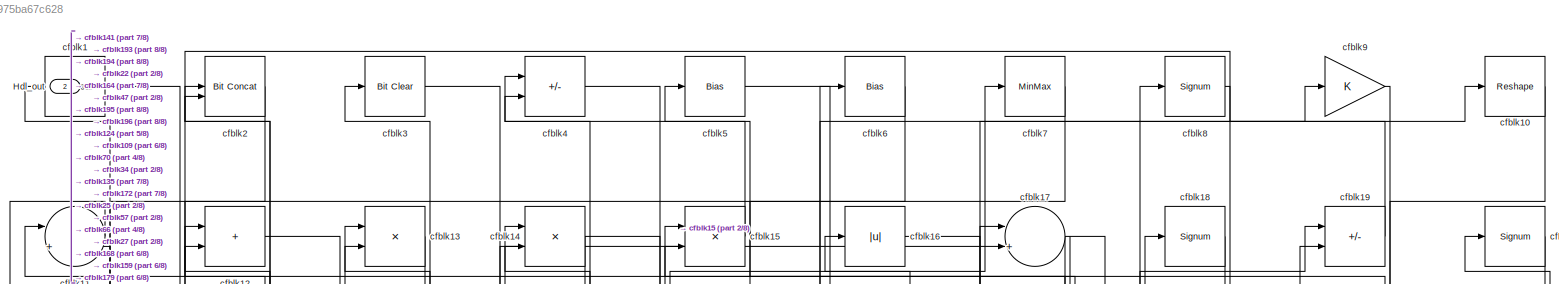
[diagram: root canvas - part 1/8, full width, top band]
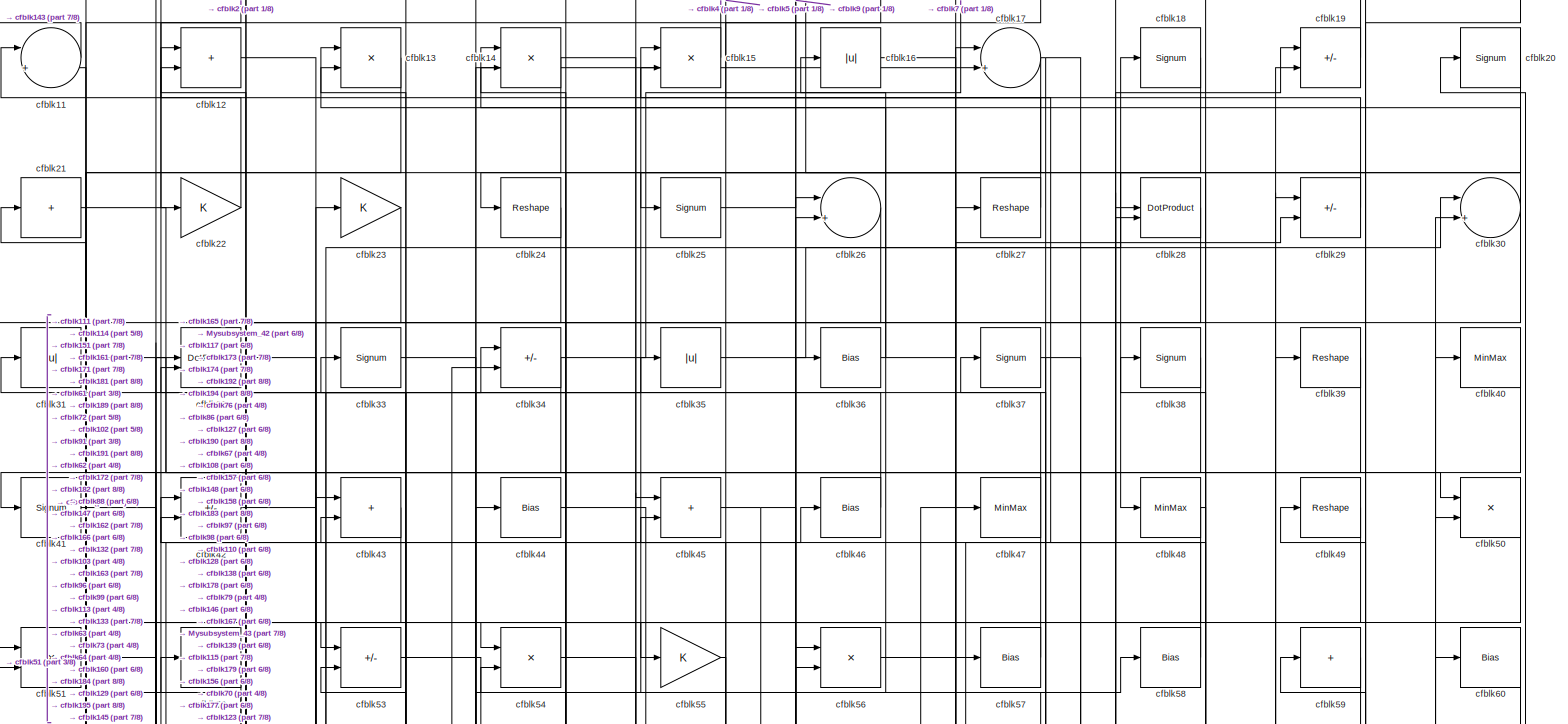
[diagram: root canvas - part 2/8, full width, top band]
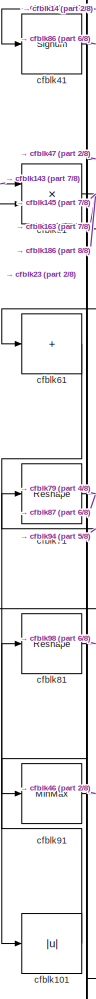
[diagram: root canvas - part 3/8, middle left region]
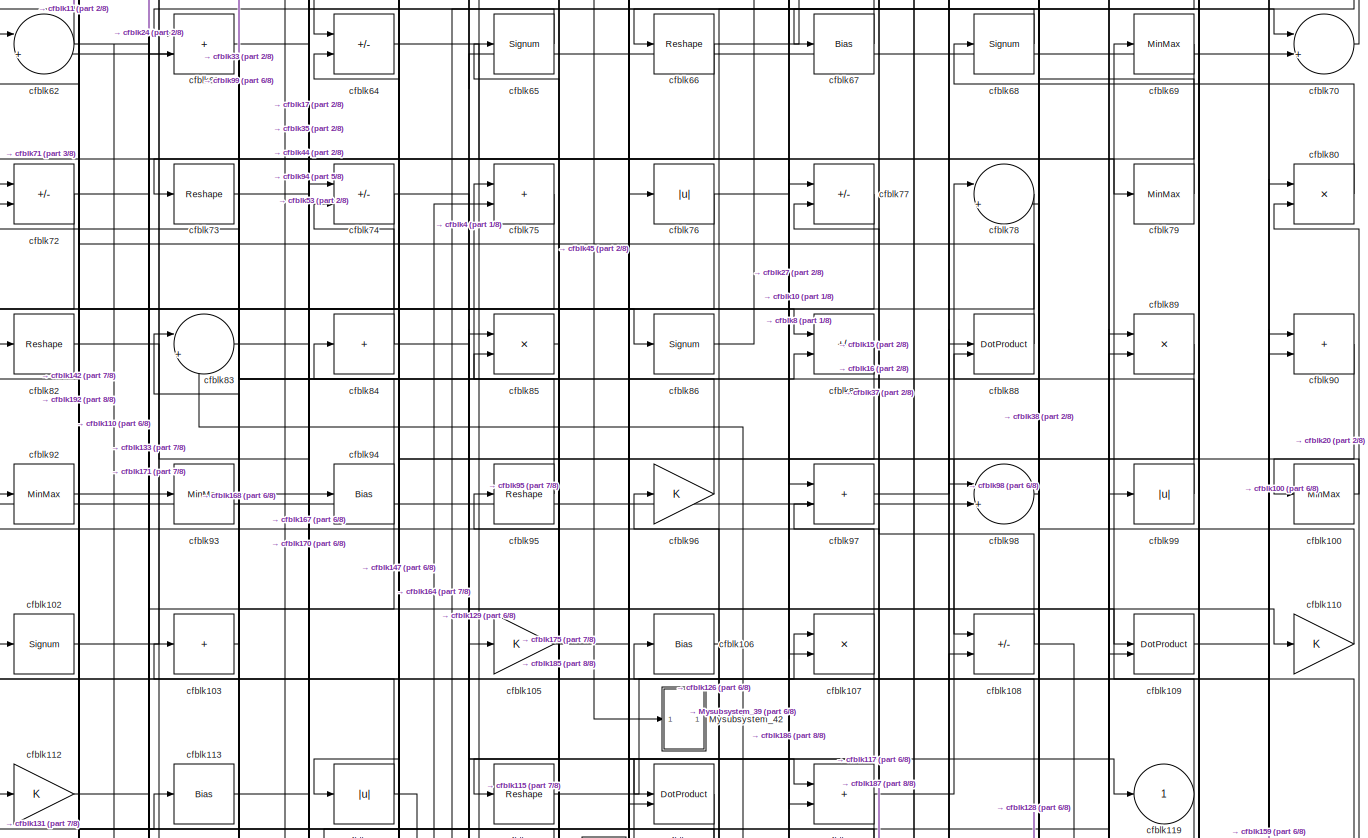
[diagram: root canvas - part 4/8, full width, middle band]
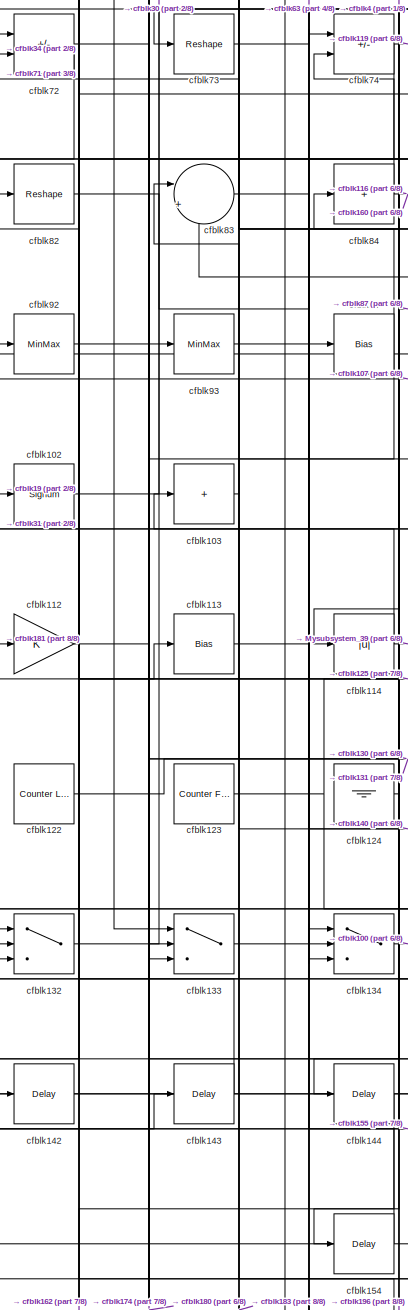
[diagram: root canvas - part 5/8, middle left region]
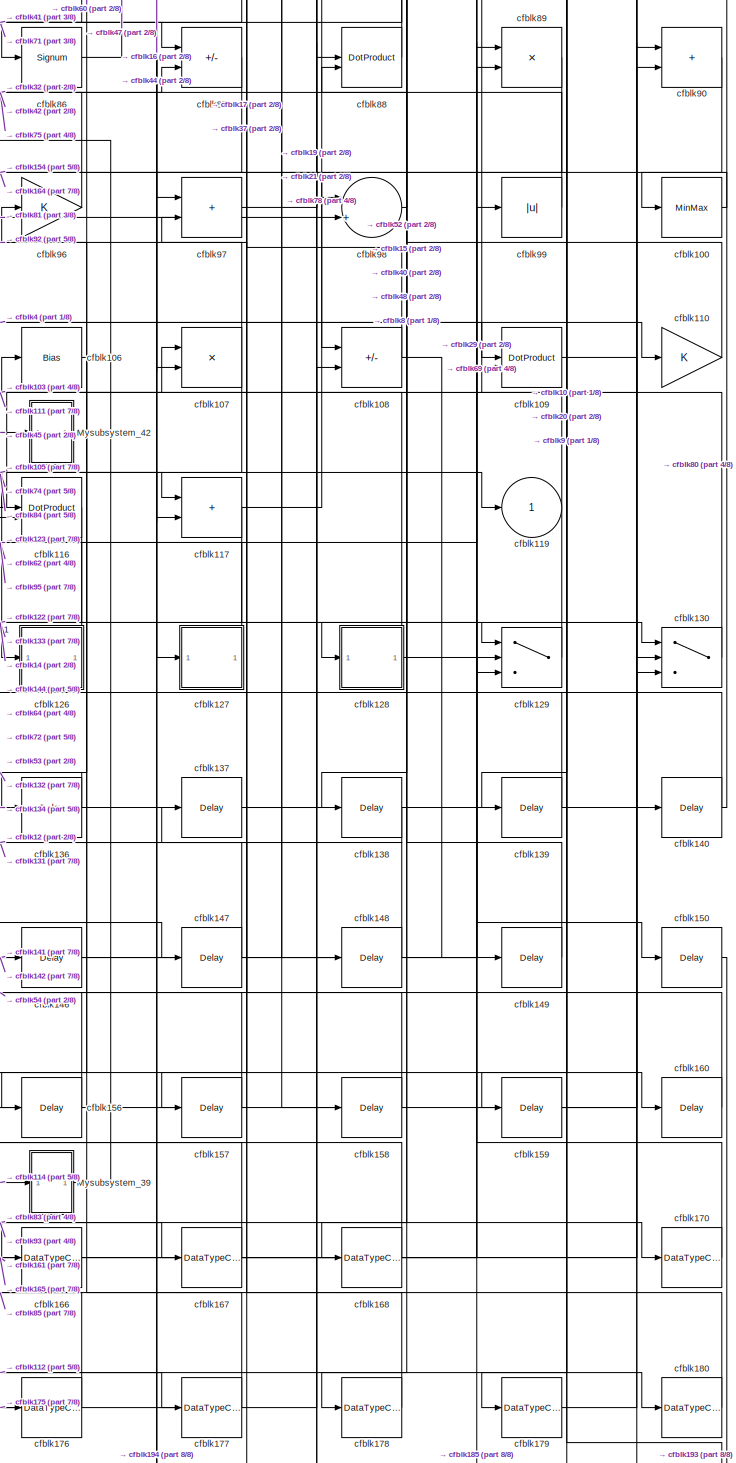
[diagram: root canvas - part 6/8, middle right region]
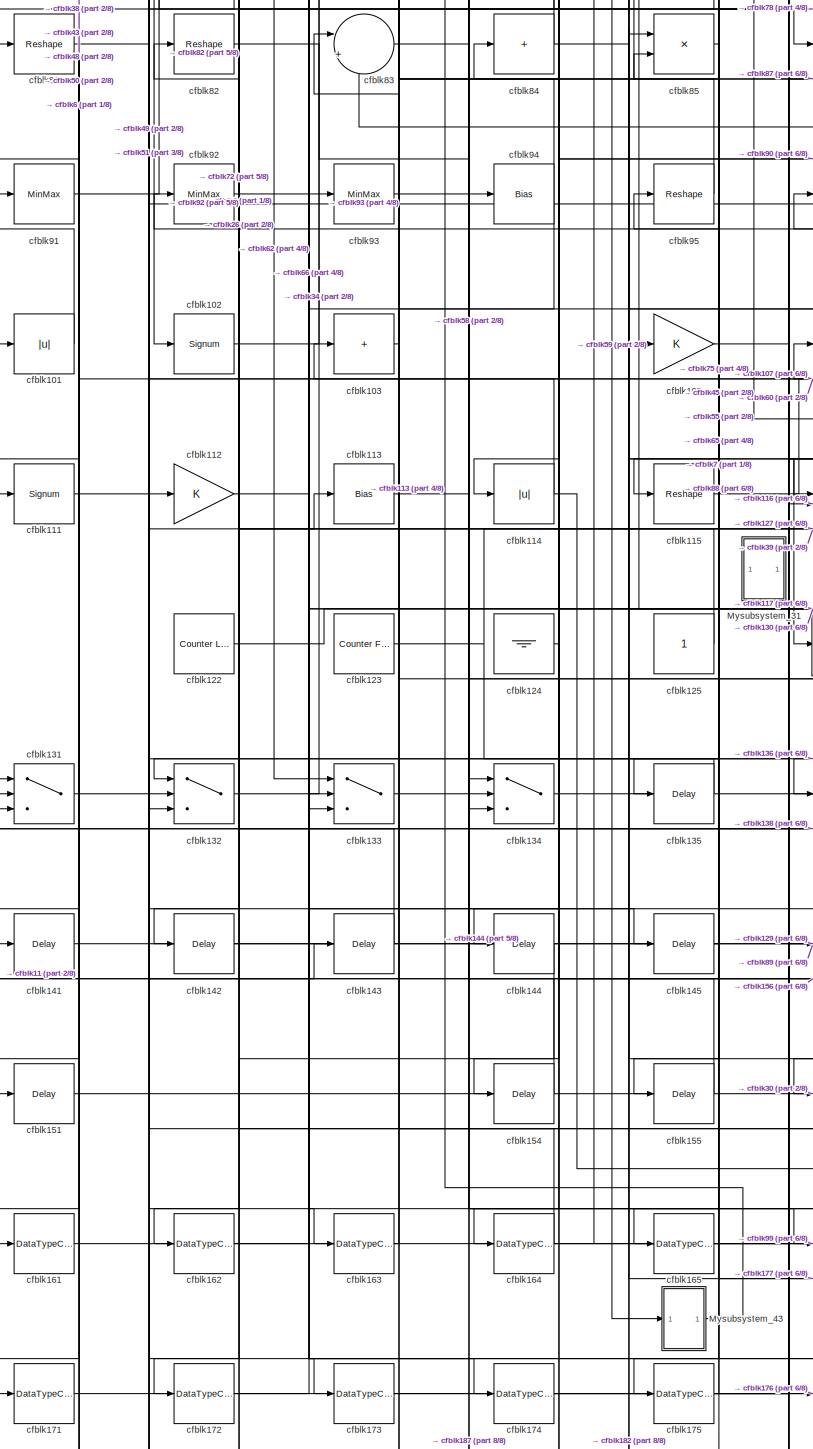
[diagram: root canvas - part 7/8, middle left region]
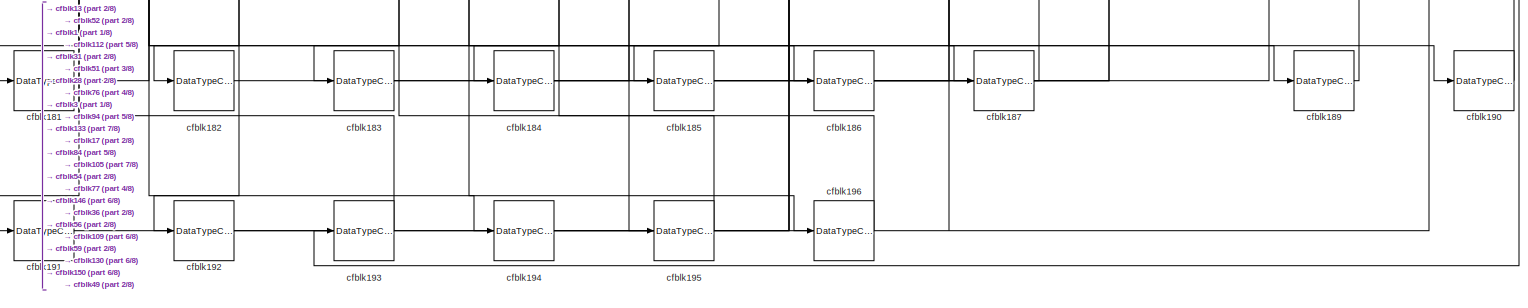
[diagram: root canvas - part 8/8, full width, bottom band]
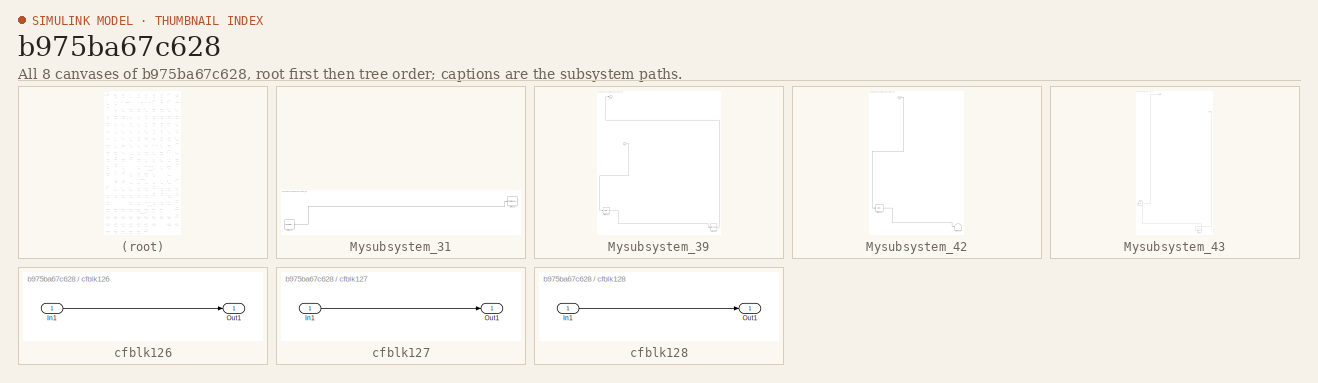
[diagram: thumbnail index - all 8 canvases of the model, root first then tree order]
MODEL slx_b975ba67c628
KIND model
CONFIG AbsTol = auto
CONFIG EnableMultiTasking = off
CONFIG FixedStep = auto
CONFIG MaxStep = auto
CONFIG MinStep = auto
CONFIG RelTol = 1e-3
CONFIG SampleTimeConstraint = Unconstrained
CONFIG SolverName = VariableStepAuto
CONFIG StartTime = 0.0
CONFIG StopTime = 10.0
BLOCK [Outport] Hdl_out
  OutDataTypeStr = uint8
  Port = 2
BLOCK [SubSystem] Mysubsystem_31
  RTWFcnName = Mysubsystem_31
  RTWFcnNameOpts = User specified
  RTWFileNameOpts = Use function name
  RTWSystemCode = Reusable function
  TreatAsAtomicUnit = on
BLOCK [ToWorkspace] Mysubsystem_31/cfblk120
  MaxDataPoints = inf
  SampleTime = -1
  SaveFormat = Timeseries
  VariableName = simout
BLOCK [Reference] Mysubsystem_31/cfblk121  REF=hdlsllib/Sources/Counter
Limited
  SourceBlock = hdlsllib/Sources/Counter\nLimited
  SourceType = Counter Limited
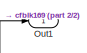
[diagram: Mysubsystem_39 - part 1/2, top left region]
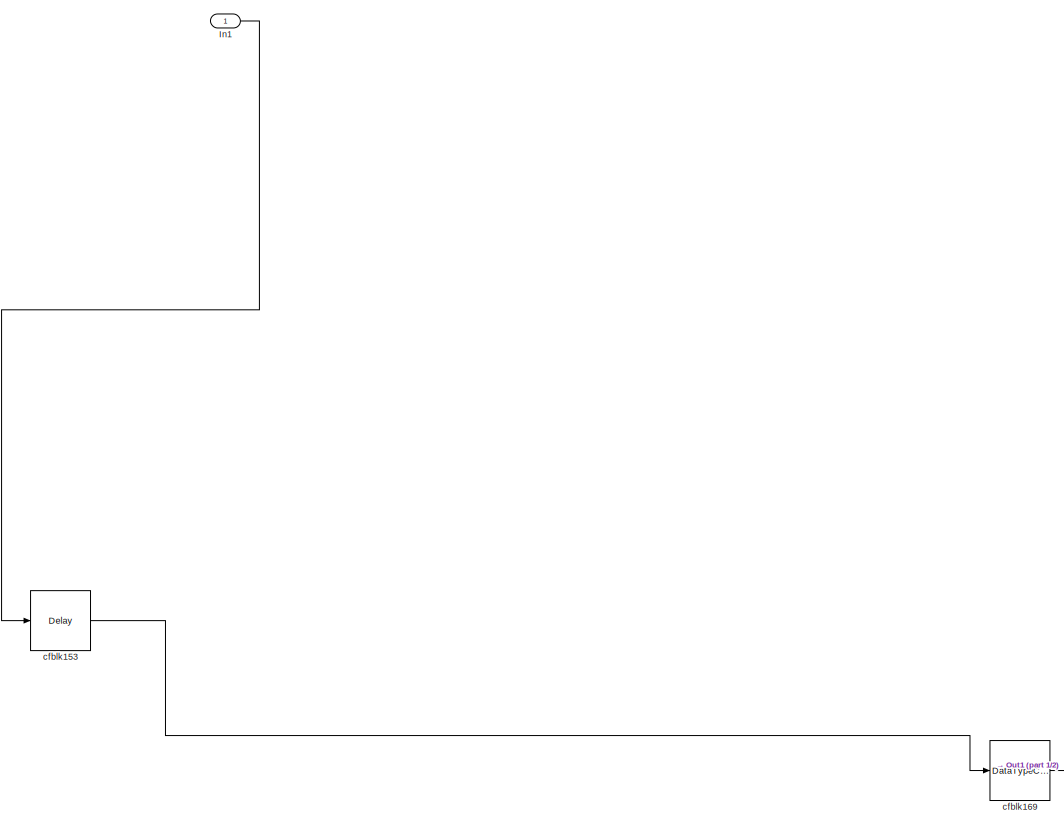
[diagram: Mysubsystem_39 - part 2/2, full width, bottom band]
BLOCK [SubSystem] Mysubsystem_39
  RTWFcnName = Mysubsystem_39
  RTWFcnNameOpts = User specified
  RTWFileNameOpts = Use function name
  RTWSystemCode = Reusable function
  TreatAsAtomicUnit = on
BLOCK [Inport] Mysubsystem_39/In1
BLOCK [Outport] Mysubsystem_39/Out1
BLOCK [Delay] Mysubsystem_39/cfblk153
  InputPortMap = u0
  SampleTime = 1
BLOCK [DataTypeConversion] Mysubsystem_39/cfblk169
  OutDataTypeStr = uint8
  RndMeth = Floor
  SaturateOnIntegerOverflow = off
BLOCK [SubSystem] Mysubsystem_42
  RTWFcnName = Mysubsystem_42
  RTWFcnNameOpts = User specified
  RTWFileNameOpts = Use function name
  RTWSystemCode = Reusable function
  TreatAsAtomicUnit = on
BLOCK [Inport] Mysubsystem_42/In1
BLOCK [Bias] Mysubsystem_42/cfblk104
  Bias = 0.0
  SaturateOnIntegerOverflow = off
BLOCK [Terminator] Mysubsystem_42/cfblk118
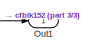
[diagram: Mysubsystem_43 - part 1/3, top left region]
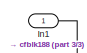
[diagram: Mysubsystem_43 - part 2/3, top right region]
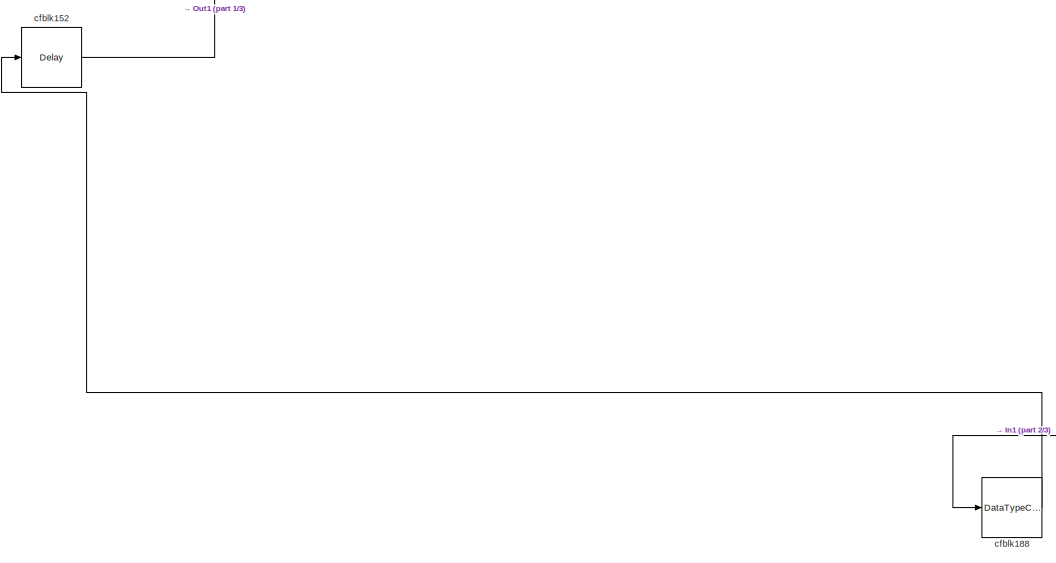
[diagram: Mysubsystem_43 - part 3/3, full width, bottom band]
BLOCK [SubSystem] Mysubsystem_43
  RTWFcnName = Mysubsystem_43
  RTWFcnNameOpts = User specified
  RTWFileNameOpts = Use function name
  RTWSystemCode = Reusable function
  TreatAsAtomicUnit = on
BLOCK [Inport] Mysubsystem_43/In1
BLOCK [Outport] Mysubsystem_43/Out1
BLOCK [Delay] Mysubsystem_43/cfblk152
  InputPortMap = u0
  SampleTime = 1
BLOCK [DataTypeConversion] Mysubsystem_43/cfblk188
  OutDataTypeStr = uint8
  RndMeth = Floor
  SaturateOnIntegerOverflow = off
BLOCK [Reference] cfblk1  REF=simulink/Logic and Bit
Operations/Bit Clear
  LibrarySourceBlock = hdlsllib/Logic and Bit\nOperations/Bit Clear
  SourceBlock = simulink/Logic and Bit\nOperations/Bit Clear
  SourceType = Bit Clear
BLOCK [Reshape] cfblk10
BLOCK [MinMax] cfblk100
  OutDataTypeStr = uint8
BLOCK [Abs] cfblk101
  OutDataTypeStr = uint8
  SaturateOnIntegerOverflow = off
BLOCK [Signum] cfblk102
BLOCK [Sum] cfblk103
  IconShape = rectangular
  Inputs = +
  OutDataTypeStr = uint8
BLOCK [Gain] cfblk105
  OutDataTypeStr = uint8
BLOCK [Bias] cfblk106
  Bias = 0.0
  SaturateOnIntegerOverflow = off
BLOCK [Product] cfblk107
  Inputs = */
  OutDataTypeStr = uint8
  RndMeth = Zero
  SaturateOnIntegerOverflow = on
BLOCK [Sum] cfblk108
  IconShape = rectangular
  Inputs = +-
  OutDataTypeStr = uint8
BLOCK [DotProduct] cfblk109
  OutDataTypeStr = uint8
BLOCK [Sum] cfblk11
  Inputs = |++
  OutDataTypeStr = uint8
BLOCK [Gain] cfblk110
  OutDataTypeStr = uint8
BLOCK [Signum] cfblk111
BLOCK [Gain] cfblk112
  OutDataTypeStr = uint8
BLOCK [Bias] cfblk113
  Bias = 0.0
  SaturateOnIntegerOverflow = off
BLOCK [Abs] cfblk114
  OutDataTypeStr = uint8
  SaturateOnIntegerOverflow = off
BLOCK [Reshape] cfblk115
BLOCK [DotProduct] cfblk116
  OutDataTypeStr = uint8
BLOCK [Sum] cfblk117
  IconShape = rectangular
  OutDataTypeStr = uint8
BLOCK [Outport] cfblk119
  OutDataTypeStr = uint8
  VectorParamsAs1DForOutWhenUnconnected = off
BLOCK [Sum] cfblk12
  IconShape = rectangular
  OutDataTypeStr = uint8
BLOCK [Reference] cfblk122  REF=hdlsllib/Sources/Counter
Limited
  SourceBlock = hdlsllib/Sources/Counter\nLimited
  SourceType = Counter Limited
BLOCK [Reference] cfblk123  REF=hdlsllib/Sources/Counter
Free-Running
  SourceBlock = hdlsllib/Sources/Counter\nFree-Running
  SourceType = Counter Free-Running
BLOCK [Ground] cfblk124
BLOCK [Constant] cfblk125
  OutDataTypeStr = uint8
  SampleTime = -1
BLOCK [SubSystem] cfblk126
  LibrarySourceBlock = hdlsllib/Ports &\nSubsystems/Subsystem
BLOCK [Inport] cfblk126/In1
BLOCK [Outport] cfblk126/Out1
BLOCK [SubSystem] cfblk127
  LibrarySourceBlock = hdlsllib/Ports &\nSubsystems/Subsystem
BLOCK [Inport] cfblk127/In1
BLOCK [Outport] cfblk127/Out1
BLOCK [SubSystem] cfblk128
  LibrarySourceBlock = hdlsllib/Ports &\nSubsystems/Subsystem
BLOCK [Inport] cfblk128/In1
BLOCK [Outport] cfblk128/Out1
BLOCK [Switch] cfblk129
  InputSameDT = off
  OutDataTypeStr = uint8
  SaturateOnIntegerOverflow = off
BLOCK [Product] cfblk13
  Inputs = */
  OutDataTypeStr = uint8
  RndMeth = Zero
  SaturateOnIntegerOverflow = on
BLOCK [Switch] cfblk130
  InputSameDT = off
  OutDataTypeStr = uint8
  SaturateOnIntegerOverflow = off
BLOCK [Switch] cfblk131
  InputSameDT = off
  OutDataTypeStr = uint8
  SaturateOnIntegerOverflow = off
BLOCK [Switch] cfblk132
  InputSameDT = off
  OutDataTypeStr = uint8
  SaturateOnIntegerOverflow = off
BLOCK [Switch] cfblk133
  InputSameDT = off
  OutDataTypeStr = uint8
  SaturateOnIntegerOverflow = off
BLOCK [Switch] cfblk134
  InputSameDT = off
  OutDataTypeStr = uint8
  SaturateOnIntegerOverflow = off
BLOCK [Delay] cfblk135
  InputPortMap = u0
  SampleTime = 1
BLOCK [Delay] cfblk136
  InputPortMap = u0
  SampleTime = 1
BLOCK [Delay] cfblk137
  InputPortMap = u0
  SampleTime = 1
BLOCK [Delay] cfblk138
  InputPortMap = u0
  SampleTime = 1
BLOCK [Delay] cfblk139
  InputPortMap = u0
  SampleTime = 1
BLOCK [Product] cfblk14
  Inputs = */
  OutDataTypeStr = uint8
  RndMeth = Zero
  SaturateOnIntegerOverflow = on
BLOCK [Delay] cfblk140
  InputPortMap = u0
  SampleTime = 1
BLOCK [Delay] cfblk141
  InputPortMap = u0
  SampleTime = 1
BLOCK [Delay] cfblk142
  InputPortMap = u0
  SampleTime = 1
BLOCK [Delay] cfblk143
  InputPortMap = u0
  SampleTime = 1
BLOCK [Delay] cfblk144
  InputPortMap = u0
  SampleTime = 1
BLOCK [Delay] cfblk145
  InputPortMap = u0
  SampleTime = 1
BLOCK [Delay] cfblk146
  InputPortMap = u0
  SampleTime = 1
BLOCK [Delay] cfblk147
  InputPortMap = u0
  SampleTime = 1
BLOCK [Delay] cfblk148
  InputPortMap = u0
  SampleTime = 1
BLOCK [Delay] cfblk149
  InputPortMap = u0
  SampleTime = 1
BLOCK [Product] cfblk15
  Inputs = */
  OutDataTypeStr = uint8
  RndMeth = Zero
  SaturateOnIntegerOverflow = on
BLOCK [Delay] cfblk150
  InputPortMap = u0
  SampleTime = 1
BLOCK [Delay] cfblk151
  InputPortMap = u0
  SampleTime = 1
BLOCK [Delay] cfblk154
  InputPortMap = u0
  SampleTime = 1
BLOCK [Delay] cfblk155
  InputPortMap = u0
  SampleTime = 1
BLOCK [Delay] cfblk156
  InputPortMap = u0
  SampleTime = 1
BLOCK [Delay] cfblk157
  InputPortMap = u0
  SampleTime = 1
BLOCK [Delay] cfblk158
  InputPortMap = u0
  SampleTime = 1
BLOCK [Delay] cfblk159
  InputPortMap = u0
  SampleTime = 1
BLOCK [Abs] cfblk16
  OutDataTypeStr = uint8
  SaturateOnIntegerOverflow = off
BLOCK [Delay] cfblk160
  InputPortMap = u0
  SampleTime = 1
BLOCK [DataTypeConversion] cfblk161
  OutDataTypeStr = uint8
  RndMeth = Floor
  SaturateOnIntegerOverflow = off
BLOCK [DataTypeConversion] cfblk162
  OutDataTypeStr = uint8
  RndMeth = Floor
  SaturateOnIntegerOverflow = off
BLOCK [DataTypeConversion] cfblk163
  OutDataTypeStr = uint8
  RndMeth = Floor
  SaturateOnIntegerOverflow = off
BLOCK [DataTypeConversion] cfblk164
  OutDataTypeStr = uint8
  RndMeth = Floor
  SaturateOnIntegerOverflow = off
BLOCK [DataTypeConversion] cfblk165
  OutDataTypeStr = uint8
  RndMeth = Floor
  SaturateOnIntegerOverflow = off
BLOCK [DataTypeConversion] cfblk166
  OutDataTypeStr = uint8
  RndMeth = Floor
  SaturateOnIntegerOverflow = off
BLOCK [DataTypeConversion] cfblk167
  OutDataTypeStr = uint8
  RndMeth = Floor
  SaturateOnIntegerOverflow = off
BLOCK [DataTypeConversion] cfblk168
  OutDataTypeStr = uint8
  RndMeth = Floor
  SaturateOnIntegerOverflow = off
BLOCK [Sum] cfblk17
  Inputs = |++
  OutDataTypeStr = uint8
BLOCK [DataTypeConversion] cfblk170
  OutDataTypeStr = uint8
  RndMeth = Floor
  SaturateOnIntegerOverflow = off
BLOCK [DataTypeConversion] cfblk171
  OutDataTypeStr = uint8
  RndMeth = Floor
  SaturateOnIntegerOverflow = off
BLOCK [DataTypeConversion] cfblk172
  OutDataTypeStr = uint8
  RndMeth = Floor
  SaturateOnIntegerOverflow = off
BLOCK [DataTypeConversion] cfblk173
  OutDataTypeStr = uint8
  RndMeth = Floor
  SaturateOnIntegerOverflow = off
BLOCK [DataTypeConversion] cfblk174
  OutDataTypeStr = uint8
  RndMeth = Floor
  SaturateOnIntegerOverflow = off
BLOCK [DataTypeConversion] cfblk175
  OutDataTypeStr = uint8
  RndMeth = Floor
  SaturateOnIntegerOverflow = off
BLOCK [DataTypeConversion] cfblk176
  OutDataTypeStr = uint8
  RndMeth = Floor
  SaturateOnIntegerOverflow = off
BLOCK [DataTypeConversion] cfblk177
  OutDataTypeStr = uint8
  RndMeth = Floor
  SaturateOnIntegerOverflow = off
BLOCK [DataTypeConversion] cfblk178
  OutDataTypeStr = uint8
  RndMeth = Floor
  SaturateOnIntegerOverflow = off
BLOCK [DataTypeConversion] cfblk179
  OutDataTypeStr = uint8
  RndMeth = Floor
  SaturateOnIntegerOverflow = off
BLOCK [Signum] cfblk18
BLOCK [DataTypeConversion] cfblk180
  OutDataTypeStr = uint8
  RndMeth = Floor
  SaturateOnIntegerOverflow = off
BLOCK [DataTypeConversion] cfblk181
  OutDataTypeStr = uint8
  RndMeth = Floor
  SaturateOnIntegerOverflow = off
BLOCK [DataTypeConversion] cfblk182
  OutDataTypeStr = uint8
  RndMeth = Floor
  SaturateOnIntegerOverflow = off
BLOCK [DataTypeConversion] cfblk183
  OutDataTypeStr = uint8
  RndMeth = Floor
  SaturateOnIntegerOverflow = off
BLOCK [DataTypeConversion] cfblk184
  OutDataTypeStr = uint8
  RndMeth = Floor
  SaturateOnIntegerOverflow = off
BLOCK [DataTypeConversion] cfblk185
  OutDataTypeStr = uint8
  RndMeth = Floor
  SaturateOnIntegerOverflow = off
BLOCK [DataTypeConversion] cfblk186
  OutDataTypeStr = uint8
  RndMeth = Floor
  SaturateOnIntegerOverflow = off
BLOCK [DataTypeConversion] cfblk187
  OutDataTypeStr = uint8
  RndMeth = Floor
  SaturateOnIntegerOverflow = off
BLOCK [DataTypeConversion] cfblk189
  OutDataTypeStr = uint8
  RndMeth = Floor
  SaturateOnIntegerOverflow = off
BLOCK [Sum] cfblk19
  IconShape = rectangular
  Inputs = +-
  OutDataTypeStr = uint8
BLOCK [DataTypeConversion] cfblk190
  OutDataTypeStr = uint8
  RndMeth = Floor
  SaturateOnIntegerOverflow = off
BLOCK [DataTypeConversion] cfblk191
  OutDataTypeStr = uint8
  RndMeth = Floor
  SaturateOnIntegerOverflow = off
BLOCK [DataTypeConversion] cfblk192
  OutDataTypeStr = uint8
  RndMeth = Floor
  SaturateOnIntegerOverflow = off
BLOCK [DataTypeConversion] cfblk193
  OutDataTypeStr = uint8
  RndMeth = Floor
  SaturateOnIntegerOverflow = off
BLOCK [DataTypeConversion] cfblk194
  OutDataTypeStr = uint8
  RndMeth = Floor
  SaturateOnIntegerOverflow = off
BLOCK [DataTypeConversion] cfblk195
  OutDataTypeStr = uint8
  RndMeth = Floor
  SaturateOnIntegerOverflow = off
BLOCK [DataTypeConversion] cfblk196
  OutDataTypeStr = uint8
  RndMeth = Floor
  SaturateOnIntegerOverflow = off
BLOCK [Reference] cfblk2  REF=hdlsllib/Logic and Bit
Operations/Bit Concat
  SourceBlock = hdlsllib/Logic and Bit\nOperations/Bit Concat
  SourceType = Bit Concat
BLOCK [Signum] cfblk20
BLOCK [Sum] cfblk21
  IconShape = rectangular
  Inputs = +
  OutDataTypeStr = uint8
BLOCK [Gain] cfblk22
  OutDataTypeStr = uint8
BLOCK [Gain] cfblk23
  OutDataTypeStr = uint8
BLOCK [Reshape] cfblk24
BLOCK [Signum] cfblk25
BLOCK [Sum] cfblk26
  Inputs = |++
  OutDataTypeStr = uint8
BLOCK [Reshape] cfblk27
BLOCK [DotProduct] cfblk28
  OutDataTypeStr = uint8
BLOCK [Sum] cfblk29
  IconShape = rectangular
  Inputs = +-
  OutDataTypeStr = uint8
BLOCK [Reference] cfblk3  REF=simulink/Logic and Bit
Operations/Bit Clear
  LibrarySourceBlock = hdlsllib/Logic and Bit\nOperations/Bit Clear
  SourceBlock = simulink/Logic and Bit\nOperations/Bit Clear
  SourceType = Bit Clear
BLOCK [Sum] cfblk30
  Inputs = |++
  OutDataTypeStr = uint8
BLOCK [Abs] cfblk31
  OutDataTypeStr = uint8
  SaturateOnIntegerOverflow = off
BLOCK [DotProduct] cfblk32
  OutDataTypeStr = uint8
BLOCK [Signum] cfblk33
BLOCK [Sum] cfblk34
  IconShape = rectangular
  Inputs = +-
  OutDataTypeStr = uint8
BLOCK [Abs] cfblk35
  OutDataTypeStr = uint8
  SaturateOnIntegerOverflow = off
BLOCK [Bias] cfblk36
  Bias = 0.0
  SaturateOnIntegerOverflow = off
BLOCK [Signum] cfblk37
BLOCK [Signum] cfblk38
BLOCK [Reshape] cfblk39
BLOCK [Sum] cfblk4
  IconShape = rectangular
  Inputs = +-
  OutDataTypeStr = uint8
BLOCK [MinMax] cfblk40
  OutDataTypeStr = uint8
BLOCK [Signum] cfblk41
BLOCK [Sum] cfblk42
  IconShape = rectangular
  Inputs = +-
  OutDataTypeStr = uint8
BLOCK [Sum] cfblk43
  IconShape = rectangular
  OutDataTypeStr = uint8
BLOCK [Bias] cfblk44
  Bias = 0.0
  SaturateOnIntegerOverflow = off
BLOCK [Sum] cfblk45
  IconShape = rectangular
  OutDataTypeStr = uint8
BLOCK [Bias] cfblk46
  Bias = 0.0
  SaturateOnIntegerOverflow = off
BLOCK [MinMax] cfblk47
  OutDataTypeStr = uint8
BLOCK [MinMax] cfblk48
  OutDataTypeStr = uint8
BLOCK [Reshape] cfblk49
BLOCK [Bias] cfblk5
  Bias = 0.0
  SaturateOnIntegerOverflow = off
BLOCK [Product] cfblk50
  Inputs = */
  OutDataTypeStr = uint8
  RndMeth = Zero
  SaturateOnIntegerOverflow = on
BLOCK [Product] cfblk51
  Inputs = */
  OutDataTypeStr = uint8
  RndMeth = Zero
  SaturateOnIntegerOverflow = on
BLOCK [Sum] cfblk52
  IconShape = rectangular
  Inputs = +
  OutDataTypeStr = uint8
BLOCK [Sum] cfblk53
  IconShape = rectangular
  Inputs = +-
  OutDataTypeStr = uint8
BLOCK [Product] cfblk54
  Inputs = */
  OutDataTypeStr = uint8
  RndMeth = Zero
  SaturateOnIntegerOverflow = on
BLOCK [Gain] cfblk55
  OutDataTypeStr = uint8
BLOCK [Product] cfblk56
  Inputs = */
  OutDataTypeStr = uint8
  RndMeth = Zero
  SaturateOnIntegerOverflow = on
BLOCK [Bias] cfblk57
  Bias = 0.0
  SaturateOnIntegerOverflow = off
BLOCK [Bias] cfblk58
  Bias = 0.0
  SaturateOnIntegerOverflow = off
BLOCK [Sum] cfblk59
  IconShape = rectangular
  Inputs = +
  OutDataTypeStr = uint8
BLOCK [Bias] cfblk6
  Bias = 0.0
  SaturateOnIntegerOverflow = off
BLOCK [Bias] cfblk60
  Bias = 0.0
  SaturateOnIntegerOverflow = off
BLOCK [Sum] cfblk61
  IconShape = rectangular
  Inputs = +
  OutDataTypeStr = uint8
BLOCK [Sum] cfblk62
  Inputs = |++
  OutDataTypeStr = uint8
BLOCK [Sum] cfblk63
  IconShape = rectangular
  OutDataTypeStr = uint8
BLOCK [Sum] cfblk64
  IconShape = rectangular
  Inputs = +-
  OutDataTypeStr = uint8
BLOCK [Signum] cfblk65
BLOCK [Reshape] cfblk66
BLOCK [Bias] cfblk67
  Bias = 0.0
  SaturateOnIntegerOverflow = off
BLOCK [Signum] cfblk68
BLOCK [MinMax] cfblk69
  OutDataTypeStr = uint8
BLOCK [MinMax] cfblk7
  OutDataTypeStr = uint8
BLOCK [Sum] cfblk70
  Inputs = |++
  OutDataTypeStr = uint8
BLOCK [Reshape] cfblk71
BLOCK [Sum] cfblk72
  IconShape = rectangular
  Inputs = +-
  OutDataTypeStr = uint8
BLOCK [Reshape] cfblk73
BLOCK [Sum] cfblk74
  IconShape = rectangular
  Inputs = +-
  OutDataTypeStr = uint8
BLOCK [Sum] cfblk75
  IconShape = rectangular
  OutDataTypeStr = uint8
BLOCK [Abs] cfblk76
  OutDataTypeStr = uint8
  SaturateOnIntegerOverflow = off
BLOCK [Sum] cfblk77
  IconShape = rectangular
  Inputs = +-
  OutDataTypeStr = uint8
BLOCK [Sum] cfblk78
  Inputs = |++
  OutDataTypeStr = uint8
BLOCK [MinMax] cfblk79
  OutDataTypeStr = uint8
BLOCK [Signum] cfblk8
BLOCK [Product] cfblk80
  Inputs = */
  OutDataTypeStr = uint8
  RndMeth = Zero
  SaturateOnIntegerOverflow = on
BLOCK [Reshape] cfblk81
BLOCK [Reshape] cfblk82
BLOCK [Sum] cfblk83
  Inputs = |++
  OutDataTypeStr = uint8
BLOCK [Sum] cfblk84
  IconShape = rectangular
  Inputs = +
  OutDataTypeStr = uint8
BLOCK [Product] cfblk85
  Inputs = */
  OutDataTypeStr = uint8
  RndMeth = Zero
  SaturateOnIntegerOverflow = on
BLOCK [Signum] cfblk86
BLOCK [Sum] cfblk87
  IconShape = rectangular
  Inputs = +-
  OutDataTypeStr = uint8
BLOCK [DotProduct] cfblk88
  OutDataTypeStr = uint8
BLOCK [Product] cfblk89
  Inputs = */
  OutDataTypeStr = uint8
  RndMeth = Zero
  SaturateOnIntegerOverflow = on
BLOCK [Gain] cfblk9
  OutDataTypeStr = uint8
BLOCK [Sum] cfblk90
  IconShape = rectangular
  OutDataTypeStr = uint8
BLOCK [MinMax] cfblk91
  OutDataTypeStr = uint8
BLOCK [MinMax] cfblk92
  OutDataTypeStr = uint8
BLOCK [MinMax] cfblk93
  OutDataTypeStr = uint8
BLOCK [Bias] cfblk94
  Bias = 0.0
  SaturateOnIntegerOverflow = off
BLOCK [Reshape] cfblk95
BLOCK [Gain] cfblk96
  OutDataTypeStr = uint8
BLOCK [Sum] cfblk97
  IconShape = rectangular
  OutDataTypeStr = uint8
BLOCK [Sum] cfblk98
  Inputs = |++
  OutDataTypeStr = uint8
BLOCK [Abs] cfblk99
  OutDataTypeStr = uint8
  SaturateOnIntegerOverflow = off
LINE Mysubsystem_31/cfblk121:1 -> Mysubsystem_31/cfblk120:1
LINE Mysubsystem_39/In1:1 -> Mysubsystem_39/cfblk153:1
LINE Mysubsystem_39/cfblk153:1 -> Mysubsystem_39/cfblk169:1
LINE Mysubsystem_39/cfblk169:1 -> Mysubsystem_39/Out1:1
LINE Mysubsystem_39:1 -> cfblk83:2
LINE Mysubsystem_42/In1:1 -> Mysubsystem_42/cfblk104:1
LINE Mysubsystem_42/cfblk104:1 -> Mysubsystem_42/cfblk118:1
LINE Mysubsystem_43/In1:1 -> Mysubsystem_43/cfblk188:1
LINE Mysubsystem_43/cfblk152:1 -> Mysubsystem_43/Out1:1
LINE Mysubsystem_43/cfblk188:1 -> Mysubsystem_43/cfblk152:1
LINE Mysubsystem_43:1 -> cfblk34:2
LINE cfblk100:1 -> cfblk80:2
LINE cfblk101:1 -> cfblk81:1
LINE cfblk102:1 -> cfblk30:1
LINE cfblk103:1 -> cfblk33:1
NET cfblk105:1 -> cfblk117:1, cfblk87:2
LINE cfblk106:1 -> cfblk136:1
NET cfblk107:1 -> cfblk126:1, cfblk92:1
NET cfblk108:1 -> cfblk149:1, cfblk37:1
LINE cfblk109:1 -> cfblk140:1
LINE cfblk10:1 -> cfblk159:1
LINE cfblk110:1 -> cfblk15:1
LINE cfblk111:1 -> cfblk107:1
LINE cfblk112:1 -> cfblk180:1
LINE cfblk113:1 -> cfblk44:1
NET cfblk114:1 -> Mysubsystem_39:1, cfblk31:1
NET cfblk115:1 -> cfblk155:1, cfblk60:1
LINE cfblk116:1 -> cfblk144:1
NET cfblk117:1 -> cfblk133:3, cfblk78:1
LINE cfblk11:1 -> cfblk143:1
LINE cfblk122:1 -> cfblk130:1
NET cfblk123:1 -> cfblk176:1, cfblk39:1
LINE cfblk124:1 -> cfblk4:2
LINE cfblk125:1 -> cfblk82:1
LINE cfblk126/In1:1 -> cfblk126/Out1:1
LINE cfblk126:1 -> cfblk62:1
LINE cfblk127/In1:1 -> cfblk127/Out1:1
NET cfblk127:1 -> cfblk42:2, cfblk95:1
LINE cfblk128/In1:1 -> cfblk128/Out1:1
NET cfblk128:1 -> cfblk103:1, cfblk150:1
LINE cfblk129:1 -> cfblk69:1
LINE cfblk12:1 -> cfblk177:1
LINE cfblk130:1 -> cfblk106:1
LINE cfblk131:1 -> cfblk113:1
LINE cfblk132:1 -> cfblk34:1
NET cfblk133:1 -> cfblk187:1, cfblk58:1
LINE cfblk134:1 -> cfblk100:1
LINE cfblk135:1 -> cfblk132:1
LINE cfblk136:1 -> cfblk132:2
LINE cfblk137:1 -> cfblk108:2
LINE cfblk138:1 -> cfblk131:3
LINE cfblk139:1 -> cfblk53:2
LINE cfblk13:1 -> cfblk181:1
LINE cfblk140:1 -> cfblk74:1
LINE cfblk141:1 -> cfblk89:2
LINE cfblk142:1 -> cfblk129:2
LINE cfblk143:1 -> cfblk51:1
LINE cfblk144:1 -> cfblk162:1
LINE cfblk145:1 -> cfblk45:2
LINE cfblk146:1 -> cfblk19:2
LINE cfblk147:1 -> cfblk64:2
LINE cfblk148:1 -> cfblk12:2
LINE cfblk149:1 -> cfblk88:2
NET cfblk14:1 -> cfblk129:3, cfblk45:1, cfblk61:1
LINE cfblk150:1 -> cfblk193:1
LINE cfblk151:1 -> cfblk30:2
LINE cfblk154:1 -> cfblk134:1
LINE cfblk155:1 -> cfblk72:1
LINE cfblk156:1 -> cfblk131:1
LINE cfblk157:1 -> cfblk14:2
LINE cfblk158:1 -> cfblk97:2
LINE cfblk159:1 -> cfblk80:1
LINE cfblk15:1 -> cfblk4:1
LINE cfblk160:1 -> cfblk54:2
NET cfblk161:1 -> cfblk173:1, cfblk99:1
LINE cfblk162:1 -> cfblk43:1
LINE cfblk163:1 -> cfblk43:2
NET cfblk164:1 -> cfblk116:2, cfblk2:2, cfblk75:2
LINE cfblk165:1 -> cfblk90:1
LINE cfblk166:1 -> cfblk90:2
NET cfblk167:1 -> cfblk29:1, cfblk32:1
LINE cfblk168:1 -> cfblk83:1
LINE cfblk16:1 -> cfblk127:1
LINE cfblk170:1 -> cfblk89:1
LINE cfblk171:1 -> cfblk93:1
LINE cfblk172:1 -> cfblk6:1
LINE cfblk173:1 -> cfblk26:1
LINE cfblk174:1 -> cfblk26:2
NET cfblk175:1 -> cfblk65:1, cfblk88:1
LINE cfblk176:1 -> cfblk85:1
LINE cfblk177:1 -> cfblk85:2
LINE cfblk178:1 -> cfblk137:1
LINE cfblk179:1 -> cfblk40:1
NET cfblk17:1 -> cfblk157:1, cfblk158:1, cfblk184:1
LINE cfblk180:1 -> cfblk96:1
LINE cfblk181:1 -> cfblk112:1
LINE cfblk182:1 -> cfblk105:1
LINE cfblk183:1 -> cfblk28:1
LINE cfblk184:1 -> cfblk28:2
NET cfblk185:1 -> cfblk109:2, cfblk146:1
LINE cfblk186:1 -> cfblk77:1
LINE cfblk187:1 -> cfblk77:2
LINE cfblk189:1 -> cfblk59:1
LINE cfblk18:1 -> cfblk48:1
LINE cfblk190:1 -> cfblk49:1
LINE cfblk191:1 -> cfblk56:1
LINE cfblk192:1 -> cfblk56:2
LINE cfblk193:1 -> cfblk1:1
NET cfblk194:1 -> cfblk130:3, cfblk17:1, cfblk36:1
LINE cfblk195:1 -> cfblk3:1
LINE cfblk196:1 -> cfblk84:1
LINE cfblk19:1 -> cfblk102:1
LINE cfblk1:1 -> cfblk194:1
NET cfblk20:1 -> cfblk138:1, cfblk139:1, cfblk25:1
LINE cfblk21:1 -> cfblk98:1
LINE cfblk22:1 -> cfblk11:1
LINE cfblk23:1 -> cfblk51:2
LINE cfblk24:1 -> cfblk63:2
LINE cfblk25:1 -> cfblk9:1
LINE cfblk26:1 -> cfblk172:1
LINE cfblk27:1 -> cfblk5:1
LINE cfblk28:1 -> cfblk182:1
LINE cfblk29:1 -> cfblk12:1
LINE cfblk2:1 -> cfblk22:1
NET cfblk30:1 -> cfblk114:1, cfblk13:2, cfblk24:1, cfblk50:2
NET cfblk31:1 -> cfblk189:1, cfblk50:1
LINE cfblk32:1 -> cfblk166:1
LINE cfblk33:1 -> cfblk70:1
NET cfblk34:1 -> cfblk72:2, cfblk7:1
LINE cfblk35:1 -> cfblk18:1
NET cfblk36:1 -> cfblk14:1, cfblk29:2
NET cfblk37:1 -> cfblk148:1, cfblk67:1
LINE cfblk38:1 -> cfblk111:1
LINE cfblk39:1 -> cfblk41:1
LINE cfblk3:1 -> cfblk196:1
LINE cfblk40:1 -> cfblk178:1
LINE cfblk41:1 -> cfblk86:1
NET cfblk42:1 -> cfblk147:1, cfblk23:1
LINE cfblk43:1 -> cfblk161:1
LINE cfblk44:1 -> cfblk97:1
NET cfblk45:1 -> Mysubsystem_42:1, cfblk117:2, cfblk76:1
LINE cfblk46:1 -> cfblk21:1
NET cfblk47:1 -> cfblk2:1, cfblk91:1
NET cfblk48:1 -> cfblk128:1, cfblk171:1
NET cfblk49:1 -> cfblk132:3, cfblk55:1
NET cfblk4:1 -> cfblk109:1, cfblk70:2
NET cfblk50:1 -> cfblk151:1, cfblk53:1
NET cfblk51:1 -> cfblk145:1, cfblk163:1, cfblk186:1
LINE cfblk52:1 -> cfblk191:1
LINE cfblk53:1 -> cfblk64:1
LINE cfblk54:1 -> cfblk195:1
LINE cfblk55:1 -> cfblk165:1
LINE cfblk56:1 -> cfblk190:1
LINE cfblk57:1 -> cfblk54:1
LINE cfblk58:1 -> cfblk13:1
LINE cfblk59:1 -> Mysubsystem_43:1
LINE cfblk5:1 -> cfblk57:1
LINE cfblk60:1 -> cfblk156:1
LINE cfblk61:1 -> cfblk101:1
NET cfblk62:1 -> cfblk110:1, cfblk11:2, cfblk133:1
NET cfblk63:1 -> cfblk17:2, cfblk94:1
LINE cfblk64:1 -> cfblk129:1
LINE cfblk65:1 -> cfblk63:1
NET cfblk66:1 -> cfblk10:1, cfblk133:2, cfblk8:1
NET cfblk67:1 -> cfblk15:2, cfblk16:1
LINE cfblk68:1 -> cfblk66:1
LINE cfblk69:1 -> cfblk73:1
LINE cfblk6:1 -> cfblk141:1
LINE cfblk70:1 -> cfblk20:1
NET cfblk71:1 -> cfblk79:1, cfblk87:1
NET cfblk72:1 -> cfblk130:2, cfblk131:2
LINE cfblk73:1 -> cfblk35:1
NET cfblk74:1 -> cfblk119:1, cfblk134:2
LINE cfblk75:1 -> cfblk142:1
NET cfblk76:1 -> cfblk192:1, cfblk27:1
LINE cfblk77:1 -> cfblk185:1
LINE cfblk78:1 -> cfblk115:1
LINE cfblk79:1 -> cfblk38:1
LINE cfblk7:1 -> cfblk135:1
LINE cfblk80:1 -> cfblk68:1
LINE cfblk81:1 -> cfblk98:2
LINE cfblk82:1 -> cfblk134:3
LINE cfblk83:1 -> cfblk167:1
NET cfblk84:1 -> cfblk116:1, cfblk160:1, cfblk74:2
LINE cfblk85:1 -> cfblk175:1
LINE cfblk86:1 -> cfblk47:1
LINE cfblk87:1 -> cfblk154:1
LINE cfblk88:1 -> cfblk52:1
NET cfblk89:1 -> cfblk107:2, cfblk108:1
LINE cfblk8:1 -> cfblk168:1
LINE cfblk90:1 -> cfblk164:1
LINE cfblk91:1 -> cfblk46:1
LINE cfblk92:1 -> cfblk174:1
LINE cfblk93:1 -> cfblk170:1
NET cfblk94:1 -> cfblk183:1, cfblk71:1
LINE cfblk95:1 -> cfblk62:2
LINE cfblk96:1 -> cfblk42:1
LINE cfblk97:1 -> cfblk19:1
LINE cfblk98:1 -> cfblk78:2
NET cfblk99:1 -> cfblk32:2, cfblk75:1
LINE cfblk9:1 -> cfblk179:1
note: NET lines group one-source signal fan-out (src -> all destinations, sorted); 1:1 wires keep LINE
